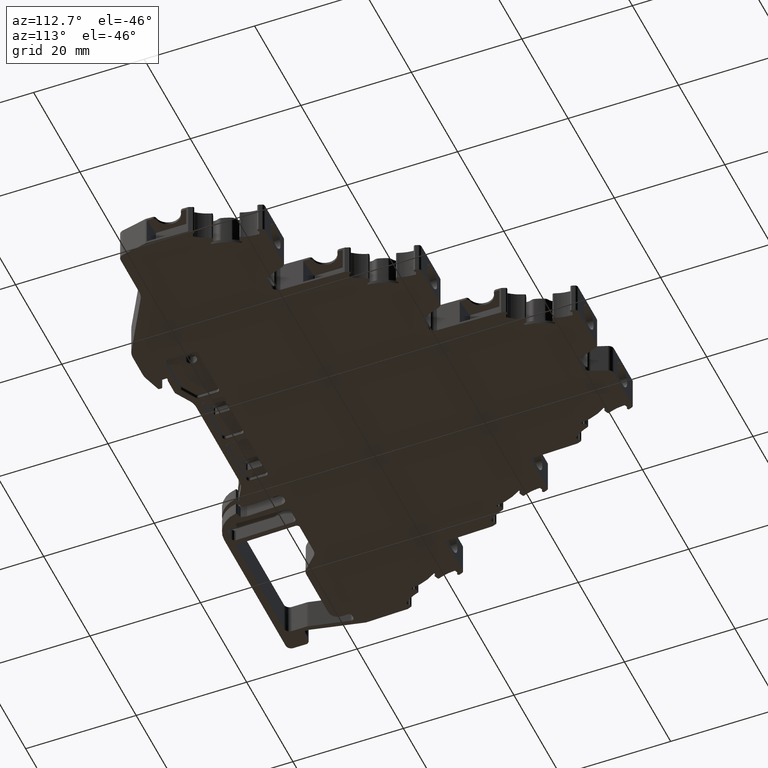
[diagram: clean part render]
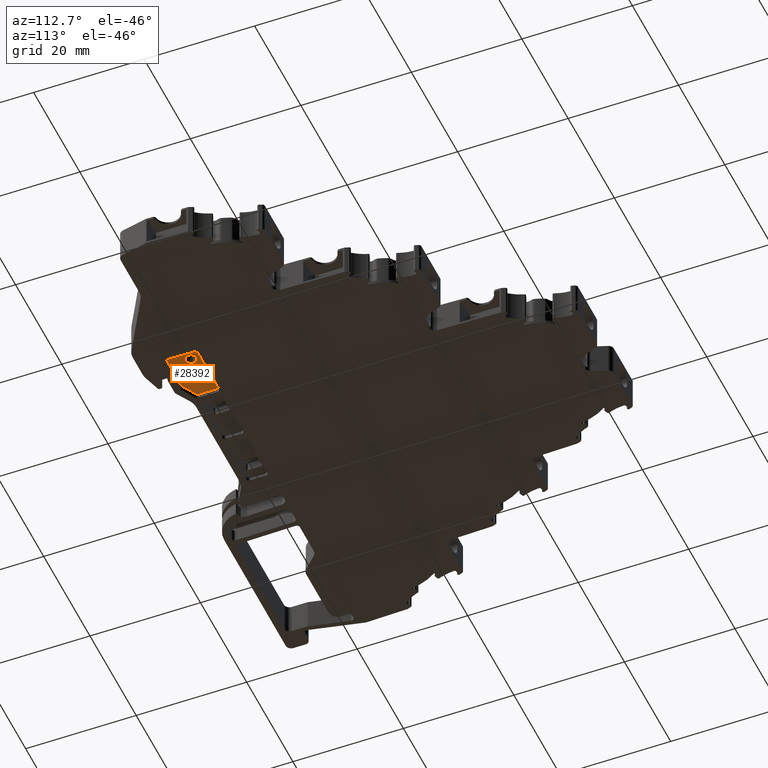
[diagram: same view with one face highlighted and labeled with its STEP entity id]
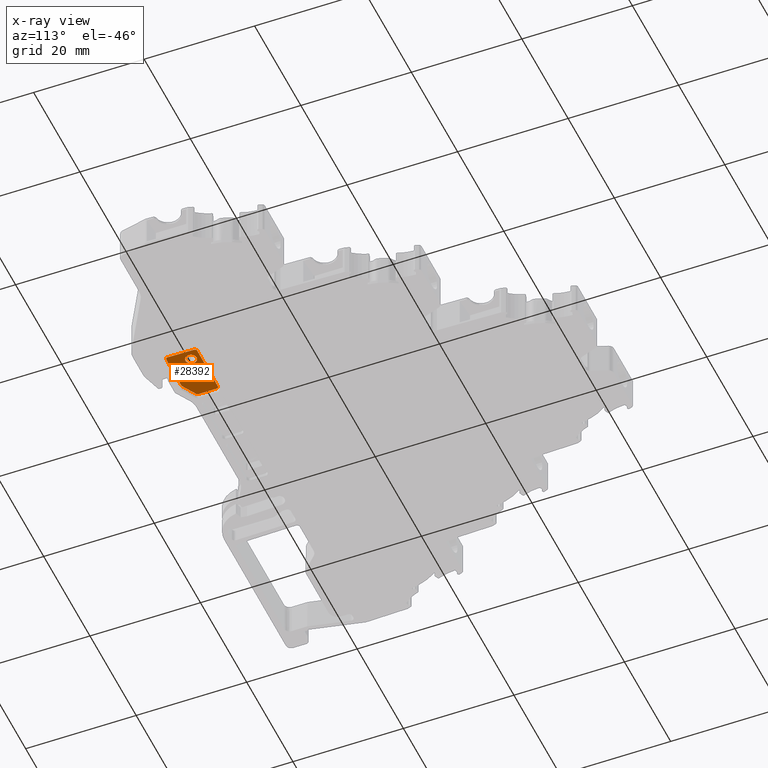
[diagram: x-ray of the same camera — body ghosted, the highlighted face saturated]
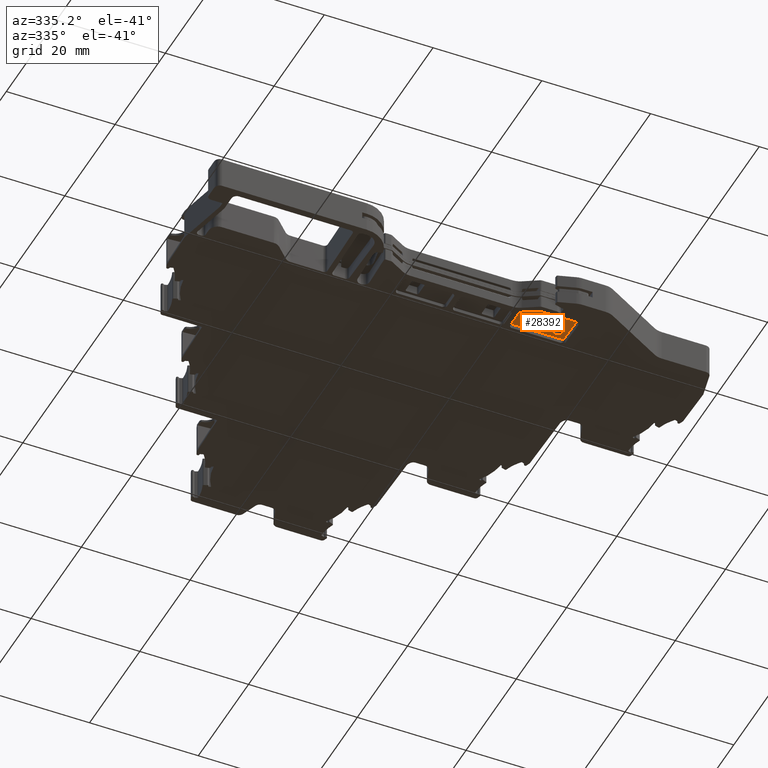
[diagram: same view with one face highlighted and labeled with its STEP entity id]
A machine part, auxiliary view. The second image highlights one B-rep face of the part: STEP entity #28392.
The next image is the same camera in x-ray: the body ghosted, the highlighted face saturated — about 0% of this face is hidden behind the body in this view.
A second angle (auxiliary view) of the same face is appended — the face is thin or edge-on in the first view.
In plain terms, the highlighted planar face has unit normal (0, 0, -1).
Its self-contained STEP definition (entity closure, byte-faithful):
#644 = CARTESIAN_POINT ( 'NONE',  ( 1282.433324345970050, 757.4104509437529487, 0.8000000000000000444 ) ) ;
#853 = CARTESIAN_POINT ( 'NONE',  ( 1289.411855569846239, 759.3850622030839759, 0.8000000000000000444 ) ) ;
#1076 = EDGE_CURVE ( 'NONE', #19266, #1129, #10062, .T. ) ;
#1129 = VERTEX_POINT ( 'NONE', #2233 ) ;
#1381 = EDGE_CURVE ( 'NONE', #33385, #30804, #16208, .T. ) ;
#1410 = LINE ( 'NONE', #24595, #4554 ) ;
#1718 = EDGE_LOOP ( 'NONE', ( #27333, #27742, #33858, #8733, #2106, #15098, #27398, #2515, #35152, #9239 ) ) ;
#1947 = EDGE_CURVE ( 'NONE', #30804, #35366, #30606, .T. ) ;
#2106 = ORIENTED_EDGE ( 'NONE', *, *, #6801, .T. ) ;
#2233 = CARTESIAN_POINT ( 'NONE',  ( 1292.222922556642061, 760.6510052001051463, 0.8000000000000000444 ) ) ;
#2515 = ORIENTED_EDGE ( 'NONE', *, *, #29661, .T. ) ;
#2666 = CARTESIAN_POINT ( 'NONE',  ( 1282.871955704559923, 760.6433500273590198, 0.8000000000000000444 ) ) ;
#3151 = EDGE_CURVE ( 'NONE', #31711, #33923, #6062, .T. ) ;
#3711 = DIRECTION ( 'NONE',  ( 1.000000000000000000, 3.737117066837465157E-14, 0.000000000000000000 ) ) ;
#3722 = CARTESIAN_POINT ( 'NONE',  ( 1282.871955704559923, 757.4104509437529487, 0.8000000000000000444 ) ) ;
#4262 = DIRECTION ( 'NONE',  ( -1.000000000000000000, 5.014151599221030134E-14, 0.000000000000000000 ) ) ;
#4519 = CARTESIAN_POINT ( 'NONE',  ( 1285.298791370705430, 755.5212831457608900, 0.8000000000000000444 ) ) ;
#4554 = VECTOR ( 'NONE', #4262, 1000.000000000000000 ) ;
#4616 = CARTESIAN_POINT ( 'NONE',  ( 1290.411855569846011, 759.3850622030839759, 0.8000000000000000444 ) ) ;
#4797 = DIRECTION ( 'NONE',  ( 0.000000000000000000, 1.000000000000000000, 0.000000000000000000 ) ) ;
#4881 = DIRECTION ( 'NONE',  ( 0.000000000000000000, 0.000000000000000000, -1.000000000000000000 ) ) ;
#4901 = CARTESIAN_POINT ( 'NONE',  ( 1285.185603127611785, 755.5681676546489598, 0.8000000000000000444 ) ) ;
#5247 = VERTEX_POINT ( 'NONE', #24826 ) ;
#5970 = CARTESIAN_POINT ( 'NONE',  ( 1291.866107674873774, 755.9599145043499675, 0.8000000000000000444 ) ) ;
#6062 = CIRCLE ( 'NONE', #16934, 0.9999999999998898659 ) ;
#6160 = EDGE_CURVE ( 'NONE', #33923, #31711, #23833, .T. ) ;
#6801 = EDGE_CURVE ( 'NONE', #1129, #26535, #35027, .T. ) ;
#6967 = CARTESIAN_POINT ( 'NONE',  ( 1285.185603127611785, 755.5681676546489598, 0.8000000000000000444 ) ) ;
#7425 = CARTESIAN_POINT ( 'NONE',  ( 1282.433324345970050, 760.6433500273590198, 0.8000000000000000444 ) ) ;
#7505 = CARTESIAN_POINT ( 'NONE',  ( 1282.871955704559923, 760.6433500273590198, 0.8000000000000000444 ) ) ;
#8258 = AXIS2_PLACEMENT_3D ( 'NONE', #30696, #4881, #22205 ) ;
#8296 = EDGE_CURVE ( 'NONE', #35366, #12814, #19629, .T. ) ;
#8733 = ORIENTED_EDGE ( 'NONE', *, *, #1076, .T. ) ;
#9075 = PLANE ( 'NONE',  #26502 ) ;
#9225 = CARTESIAN_POINT ( 'NONE',  ( 1292.220207959303934, 760.8065243774319697, 0.8000000000000000444 ) ) ;
#9239 = ORIENTED_EDGE ( 'NONE', *, *, #1381, .T. ) ;
#9761 = DIRECTION ( 'NONE',  ( 0.000000000000000000, 0.000000000000000000, -1.000000000000000000 ) ) ;
#10062 = CIRCLE ( 'NONE', #8258, 0.4386313585900136758 ) ;
#10505 = DIRECTION ( 'NONE',  ( -0.8660238551009116215, 0.5000026823889597294, 0.000000000000000000 ) ) ;
#10894 = DIRECTION ( 'NONE',  ( -1.000000000000000000, 0.000000000000000000, 0.000000000000000000 ) ) ;
#10941 = VECTOR ( 'NONE', #3711, 1000.000000000000000 ) ;
#12802 = EDGE_CURVE ( 'NONE', #12814, #19266, #14513, .T. ) ;
#12814 = VERTEX_POINT ( 'NONE', #18232 ) ;
#13216 =( BOUNDED_CURVE ( )  B_SPLINE_CURVE ( 3, ( #30333, #4519, #26611, #4901 ),
 .UNSPECIFIED., .F., .F. ) 
 B_SPLINE_CURVE_WITH_KNOTS ( ( 4, 4 ),
 ( 2.879832527104692286, 3.403352780077363526 ),
 .UNSPECIFIED. ) 
 CURVE ( )  GEOMETRIC_REPRESENTATION_ITEM ( )  RATIONAL_B_SPLINE_CURVE ( ( 1.000000000000000000, 0.9772906580800626575, 0.9772906580800626575, 1.000000000000000000 ) ) 
 REPRESENTATION_ITEM ( '' )  );
#13454 = DIRECTION ( 'NONE',  ( -1.000000000000000000, 0.000000000000000000, 0.000000000000000000 ) ) ;
#14156 = DIRECTION ( 'NONE',  ( -1.000000000000000000, 0.000000000000000000, 0.000000000000000000 ) ) ;
#14513 = LINE ( 'NONE', #17530, #10941 ) ;
#14973 = CARTESIAN_POINT ( 'NONE',  ( 1292.304672227782021, 755.9675696770959803, 0.8000000000000000444 ) ) ;
#15098 = ORIENTED_EDGE ( 'NONE', *, *, #30268, .T. ) ;
#15150 = CARTESIAN_POINT ( 'NONE',  ( 1291.784358003731768, 761.0819813859491205, 0.8000000000000000444 ) ) ;
#15863 = EDGE_CURVE ( 'NONE', #5247, #28435, #1410, .T. ) ;
#16208 = CIRCLE ( 'NONE', #21024, 0.4386313585900136758 ) ;
#16934 = AXIS2_PLACEMENT_3D ( 'NONE', #4616, #27609, #13454 ) ;
#17360 = CIRCLE ( 'NONE', #34182, 0.4386313585900136758 ) ;
#17530 = CARTESIAN_POINT ( 'NONE',  ( 1282.871955704559923, 761.0819813859491205, 0.8000000000000000444 ) ) ;
#18189 = CARTESIAN_POINT ( 'NONE',  ( 1290.411855569846011, 759.3850622030839759, 0.8000000000000000444 ) ) ;
#18232 = CARTESIAN_POINT ( 'NONE',  ( 1282.871955704559923, 761.0819813859491205, 0.8000000000000000444 ) ) ;
#19266 = VERTEX_POINT ( 'NONE', #15150 ) ;
#19629 = CIRCLE ( 'NONE', #35866, 0.4386313585897916312 ) ;
#20669 = CARTESIAN_POINT ( 'NONE',  ( 1282.433324345970050, 760.6433500273590198, 0.8000000000000000444 ) ) ;
#20966 = ORIENTED_EDGE ( 'NONE', *, *, #3151, .F. ) ;
#21024 = AXIS2_PLACEMENT_3D ( 'NONE', #3722, #9761, #23327 ) ;
#21179 = DIRECTION ( 'NONE',  ( -1.000000000000000000, 0.000000000000000000, 0.000000000000000000 ) ) ;
#22205 = DIRECTION ( 'NONE',  ( -1.000000000000000000, 0.000000000000000000, 0.000000000000000000 ) ) ;
#23004 = EDGE_CURVE ( 'NONE', #31869, #33385, #25573, .T. ) ;
#23017 = FACE_BOUND ( 'NONE', #25267, .T. ) ;
#23327 = DIRECTION ( 'NONE',  ( -1.000000000000000000, 0.000000000000000000, 0.000000000000000000 ) ) ;
#23833 = CIRCLE ( 'NONE', #25630, 0.9999999999998898659 ) ;
#24595 = CARTESIAN_POINT ( 'NONE',  ( 1282.871955704559923, 755.5212831457599805, 0.8000000000000000444 ) ) ;
#24826 = CARTESIAN_POINT ( 'NONE',  ( 1291.866107674873774, 755.5212831457599805, 0.8000000000000000444 ) ) ;
#25267 = EDGE_LOOP ( 'NONE', ( #29825, #20966 ) ) ;
#25573 = LINE ( 'NONE', #37064, #26333 ) ;
#25630 = AXIS2_PLACEMENT_3D ( 'NONE', #18189, #29863, #21179 ) ;
#26137 = DIRECTION ( 'NONE',  ( -1.000000000000000000, 0.000000000000000000, 0.000000000000000000 ) ) ;
#26333 = VECTOR ( 'NONE', #10505, 1000.000000000000114 ) ;
#26502 = AXIS2_PLACEMENT_3D ( 'NONE', #2666, #34687, #14156 ) ;
#26535 = VERTEX_POINT ( 'NONE', #14973 ) ;
#26611 = CARTESIAN_POINT ( 'NONE',  ( 1285.239111314113188, 755.5372744677902119, 0.8000000000000000444 ) ) ;
#27333 = ORIENTED_EDGE ( 'NONE', *, *, #1947, .T. ) ;
#27398 = ORIENTED_EDGE ( 'NONE', *, *, #15863, .T. ) ;
#27609 = DIRECTION ( 'NONE',  ( 0.000000000000000000, 0.000000000000000000, -1.000000000000000000 ) ) ;
#27742 = ORIENTED_EDGE ( 'NONE', *, *, #8296, .T. ) ;
#28392 = ADVANCED_FACE ( 'NONE', ( #23017, #34499 ), #9075, .T. ) ;
#28435 = VERTEX_POINT ( 'NONE', #32232 ) ;
#29567 = CARTESIAN_POINT ( 'NONE',  ( 1282.652638848686138, 757.0305857236190832, 0.8000000000000000444 ) ) ;
#29661 = EDGE_CURVE ( 'NONE', #28435, #31869, #13216, .T. ) ;
#29825 = ORIENTED_EDGE ( 'NONE', *, *, #6160, .F. ) ;
#29863 = DIRECTION ( 'NONE',  ( 0.000000000000000000, 0.000000000000000000, -1.000000000000000000 ) ) ;
#30268 = EDGE_CURVE ( 'NONE', #26535, #5247, #17360, .T. ) ;
#30333 = CARTESIAN_POINT ( 'NONE',  ( 1285.360577412955990, 755.5212831457599805, 0.8000000000000000444 ) ) ;
#30386 = VECTOR ( 'NONE', #4797, 1000.000000000000000 ) ;
#30501 = DIRECTION ( 'NONE',  ( 0.000000000000000000, 0.000000000000000000, -1.000000000000000000 ) ) ;
#30606 = LINE ( 'NONE', #7425, #30386 ) ;
#30696 = CARTESIAN_POINT ( 'NONE',  ( 1291.784358003731768, 760.6433500273590198, 0.8000000000000000444 ) ) ;
#30804 = VERTEX_POINT ( 'NONE', #644 ) ;
#31711 = VERTEX_POINT ( 'NONE', #35044 ) ;
#31869 = VERTEX_POINT ( 'NONE', #6967 ) ;
#31971 = DIRECTION ( 'NONE',  ( 0.000000000000000000, 0.000000000000000000, -1.000000000000000000 ) ) ;
#32232 = CARTESIAN_POINT ( 'NONE',  ( 1285.360577412955990, 755.5212831457599805, 0.8000000000000000444 ) ) ;
#32673 = VECTOR ( 'NONE', #34476, 1000.000000000000114 ) ;
#33385 = VERTEX_POINT ( 'NONE', #29567 ) ;
#33858 = ORIENTED_EDGE ( 'NONE', *, *, #12802, .T. ) ;
#33923 = VERTEX_POINT ( 'NONE', #853 ) ;
#34182 = AXIS2_PLACEMENT_3D ( 'NONE', #5970, #31971, #26137 ) ;
#34476 = DIRECTION ( 'NONE',  ( 0.01745240643731259603, -0.9998476951563907145, 0.000000000000000000 ) ) ;
#34499 = FACE_OUTER_BOUND ( 'NONE', #1718, .T. ) ;
#34687 = DIRECTION ( 'NONE',  ( 0.000000000000000000, 0.000000000000000000, -1.000000000000000000 ) ) ;
#35027 = LINE ( 'NONE', #9225, #32673 ) ;
#35044 = CARTESIAN_POINT ( 'NONE',  ( 1291.411855569846011, 759.3850622030839759, 0.8000000000000000444 ) ) ;
#35152 = ORIENTED_EDGE ( 'NONE', *, *, #23004, .T. ) ;
#35366 = VERTEX_POINT ( 'NONE', #20669 ) ;
#35866 = AXIS2_PLACEMENT_3D ( 'NONE', #7505, #30501, #10894 ) ;
#37064 = CARTESIAN_POINT ( 'NONE',  ( 1281.252747474851958, 757.8388191664370197, 0.8000000000000000444 ) ) ;